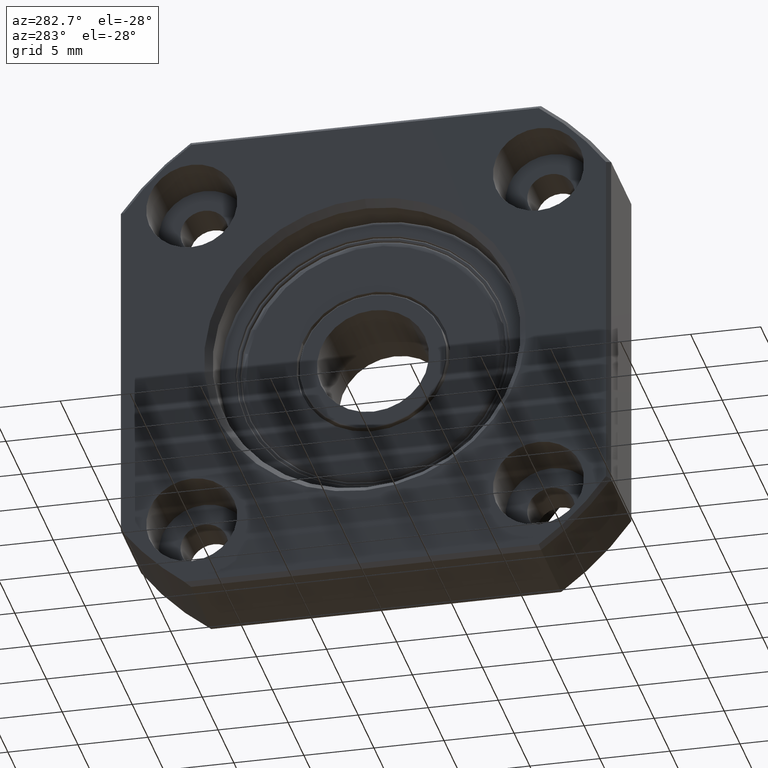
[diagram: clean part render]
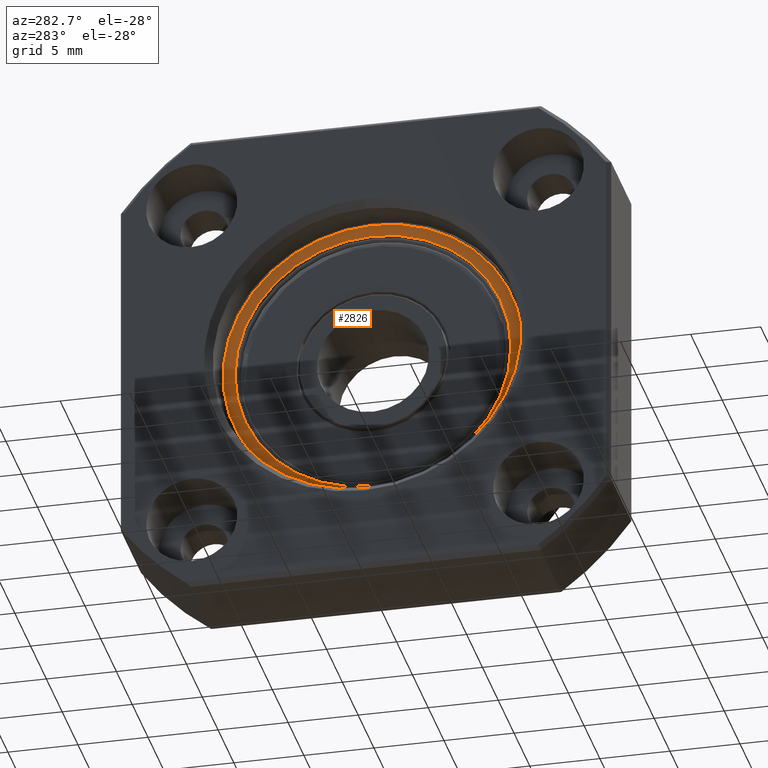
[diagram: same view with one face highlighted and labeled with its STEP entity id]
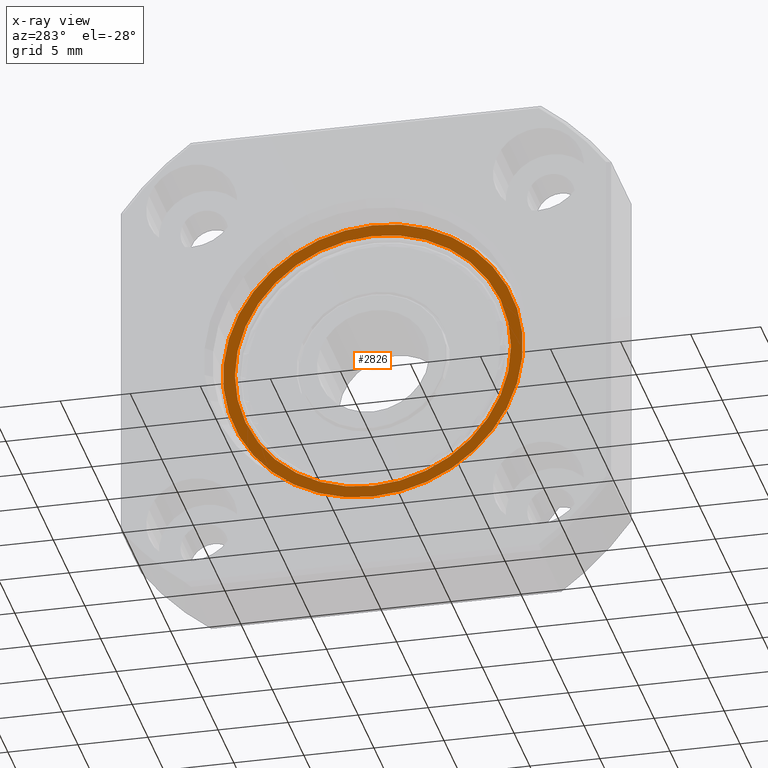
[diagram: x-ray of the same camera — body ghosted, the highlighted face saturated]
A machine part, auxiliary view. The second image highlights one B-rep face of the part: STEP entity #2826.
The next image is the same camera in x-ray: the body ghosted, the highlighted face saturated — about 0% of this face is hidden behind the body in this view.
In plain terms, the highlighted planar face has unit normal (1, 0, 0).
Its self-contained STEP definition (entity closure, byte-faithful):
#663 = EDGE_CURVE ( 'NONE', #664, #665, #1698, .T. ) ;
#664 = VERTEX_POINT ( 'NONE', #1693 ) ;
#665 = VERTEX_POINT ( 'NONE', #1692 ) ;
#882 = EDGE_CURVE ( 'NONE', #883, #884, #1886, .T. ) ;
#883 = VERTEX_POINT ( 'NONE', #1877 ) ;
#884 = VERTEX_POINT ( 'NONE', #1876 ) ;
#1692 = CARTESIAN_POINT ( 'NONE',  ( 2.499999999999996900, 1.206237258515041300E-015, -9.849999999999997900 ) ) ;
#1693 = CARTESIAN_POINT ( 'NONE',  ( 2.499999999999996900, 0.0000000000000000000, 9.849999999999997900 ) ) ;
#1694 = DIRECTION ( 'NONE',  ( 0.0000000000000000000, 0.0000000000000000000, 1.000000000000000000 ) ) ;
#1695 = DIRECTION ( 'NONE',  ( -1.000000000000000000, -0.0000000000000000000, -0.0000000000000000000 ) ) ;
#1696 = CARTESIAN_POINT ( 'NONE',  ( 2.499999999999996900, 0.0000000000000000000, 0.0000000000000000000 ) ) ;
#1697 = AXIS2_PLACEMENT_3D ( 'NONE', #1696, #1695, #1694 ) ;
#1698 = CIRCLE ( 'NONE', #1697, 9.849999999999999600 ) ;
#1876 = CARTESIAN_POINT ( 'NONE',  ( 2.499999999999997300, 0.0000000000000000000, -10.69999999999999900 ) ) ;
#1877 = CARTESIAN_POINT ( 'NONE',  ( 2.499999999999997300, 1.328697893897279200E-015, 10.69999999999999900 ) ) ;
#1878 = DIRECTION ( 'NONE',  ( 0.0000000000000000000, 0.0000000000000000000, -1.000000000000000000 ) ) ;
#1879 = DIRECTION ( 'NONE',  ( -1.000000000000000000, -0.0000000000000000000, -0.0000000000000000000 ) ) ;
#1880 = CARTESIAN_POINT ( 'NONE',  ( 2.499999999999997300, 0.0000000000000000000, 0.0000000000000000000 ) ) ;
#1881 = AXIS2_PLACEMENT_3D ( 'NONE', #1880, #1879, #1878 ) ;
#1886 = CIRCLE ( 'NONE', #1881, 10.69999999999999900 ) ;
#2236 = DIRECTION ( 'NONE',  ( 0.0000000000000000000, 0.0000000000000000000, 1.000000000000000000 ) ) ;
#2237 = DIRECTION ( 'NONE',  ( -1.000000000000000000, -0.0000000000000000000, -0.0000000000000000000 ) ) ;
#2238 = CARTESIAN_POINT ( 'NONE',  ( 2.499999999999996900, 0.0000000000000000000, 0.0000000000000000000 ) ) ;
#2239 = AXIS2_PLACEMENT_3D ( 'NONE', #2238, #2237, #2236 ) ;
#2240 = CIRCLE ( 'NONE', #2239, 9.849999999999999600 ) ;
#2246 = DIRECTION ( 'NONE',  ( 0.0000000000000000000, 0.0000000000000000000, -1.000000000000000000 ) ) ;
#2247 = DIRECTION ( 'NONE',  ( 1.000000000000000000, 0.0000000000000000000, 0.0000000000000000000 ) ) ;
#2248 = AXIS2_PLACEMENT_3D ( 'NONE', #2250, #2247, #2246 ) ;
#2250 = CARTESIAN_POINT ( 'NONE',  ( 2.499999999999997300, 11.00000000000000000, 0.0000000000000000000 ) ) ;
#2251 = PLANE ( 'NONE',  #2248 ) ;
#2252 = FACE_BOUND ( 'NONE', #3024, .T. ) ;
#2257 = FACE_OUTER_BOUND ( 'NONE', #2825, .T. ) ;
#2288 = CARTESIAN_POINT ( 'NONE',  ( 2.499999999999997300, 0.0000000000000000000, 0.0000000000000000000 ) ) ;
#2289 = AXIS2_PLACEMENT_3D ( 'NONE', #2288, #2326, #2325 ) ;
#2294 = CIRCLE ( 'NONE', #2289, 10.69999999999999900 ) ;
#2325 = DIRECTION ( 'NONE',  ( 0.0000000000000000000, 0.0000000000000000000, -1.000000000000000000 ) ) ;
#2326 = DIRECTION ( 'NONE',  ( -1.000000000000000000, -0.0000000000000000000, -0.0000000000000000000 ) ) ;
#2798 = EDGE_CURVE ( 'NONE', #884, #883, #2294, .T. ) ;
#2800 = ORIENTED_EDGE ( 'NONE', *, *, #882, .T. ) ;
#2825 = EDGE_LOOP ( 'NONE', ( #2827, #2800 ) ) ;
#2826 = ADVANCED_FACE ( 'NONE', ( #2257, #2252 ), #2251, .F. ) ;
#2827 = ORIENTED_EDGE ( 'NONE', *, *, #2798, .T. ) ;
#2834 = EDGE_CURVE ( 'NONE', #665, #664, #2240, .T. ) ;
#3024 = EDGE_LOOP ( 'NONE', ( #3026, #3028 ) ) ;
#3026 = ORIENTED_EDGE ( 'NONE', *, *, #663, .F. ) ;
#3028 = ORIENTED_EDGE ( 'NONE', *, *, #2834, .F. ) ;